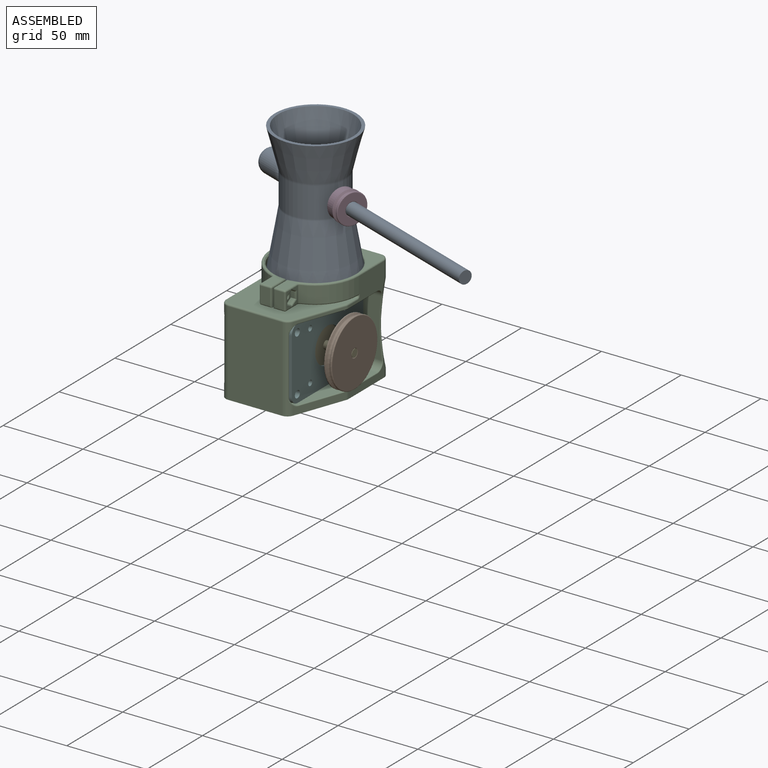
[diagram: assembled view]
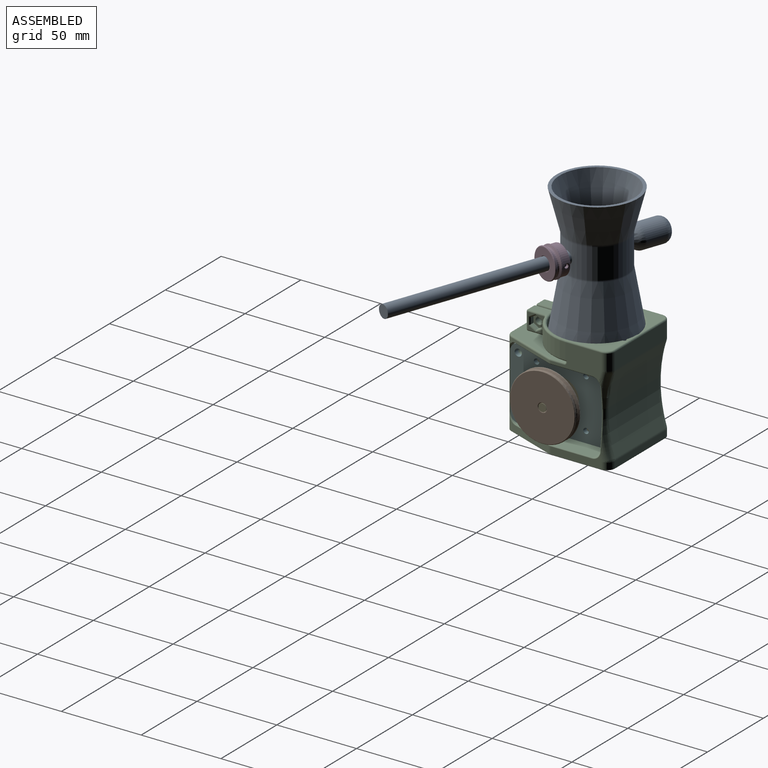
[diagram: assembled view, second angle]
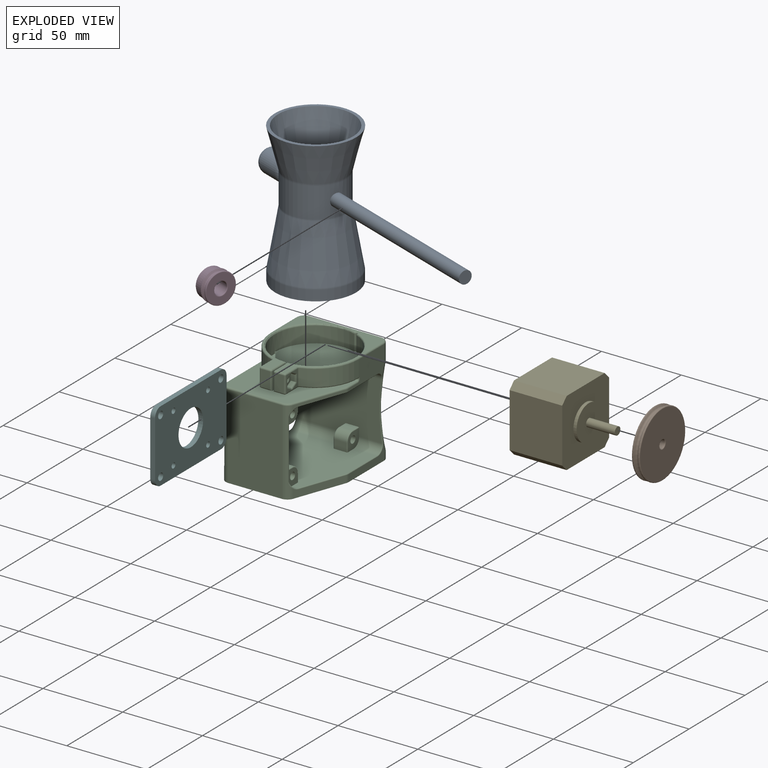
[diagram: exploded view]
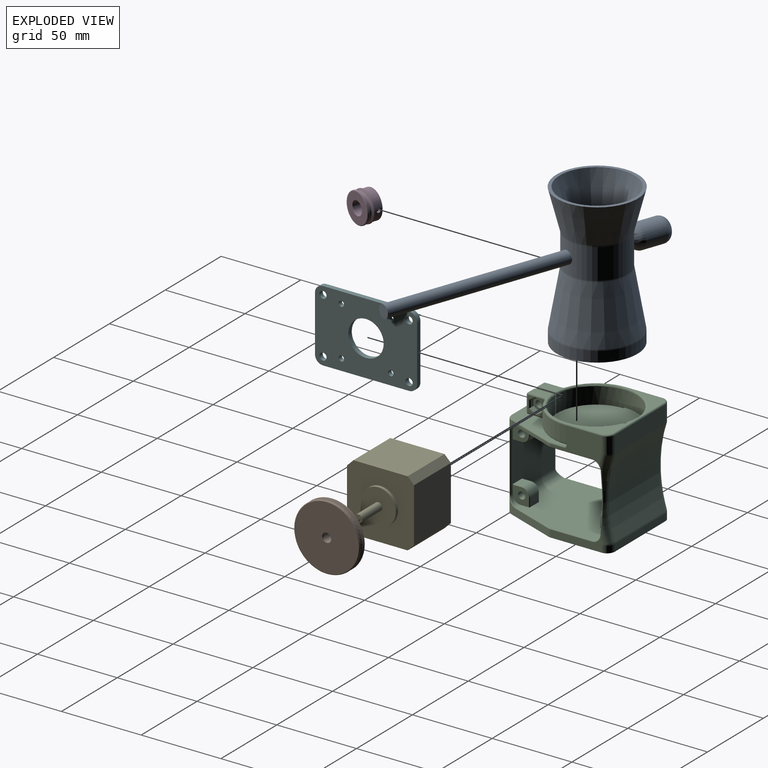
[diagram: exploded view, second angle]
ASSEMBLY  parts=6 mates=5
PART A: 25 faces, bbox 54.9x178x88 mm
  f0: cone r=25.35mm half-angle=10deg, axis (0,0,-1), area 4971.4mm2, adj f22,f24
  f1: cylinder r=25.35mm len=50.7mm, axis (0,0,1), area 1045.3mm2, adj f2,f22
  f2: plane 50.7x50.7mm, normal (0,0,-1), area 698.6mm2, adj f1,f3
  f3: cylinder r=20.5mm len=41mm, axis (0,0,1), area 772.8mm2, adj f2,f4
  f4: plane 41x41mm, normal (0,0,-1), area 412.3mm2, adj f3,f5
  f5: cone r=17mm half-angle=5.7deg, axis (0,0,-1), area 3706.3mm2, adj f4,f6
  f6: plane 26.2x26.2mm, normal (0,0,-1), area 539.1mm2, adj f5
  f7: plane 26.2x26.2mm, normal (0,0,1), area 539.1mm2, adj f8
  f8: cone r=23.5mm half-angle=14.6deg, axis (0,0,1), area 4647.4mm2, adj f7,f9,f19
  f9: plane 51x51mm, normal (0,0,1), area 307.9mm2, adj f8,f10
  f10: cone r=19mm half-angle=14.6deg, axis (0,0,1), area 3534.6mm2, adj f9,f23
  f11: cylinder r=19mm len=38mm, axis (0,0,1), area 2158.3mm2, adj f13,f17,f18,f23,f24
  f12: plane 8x8mm, normal (0,-1,0), area 50.3mm2, adj f13
  f13: cylinder r=4mm len=115.43mm, axis (0,-1,0), area 2895.6mm2, adj f11,f12
  f14: plane 5x5mm, normal (0,1,0), area 19.6mm2, adj f21
  f15: cylinder r=7.5mm len=15mm, axis (0,-1,0), area 632.6mm2, adj f20,f21
  f16: cone r=4mm half-angle=35deg, axis (0,1,0), area 150.7mm2, adj f17,f18,f20
  f17: cylinder r=4mm len=8mm, axis (0,-1,0), area 2.7mm2, adj f11,f16
  f18: cylinder r=4mm len=8mm, axis (0,-1,0), area 2.7mm2, adj f11,f16
  f19: cylinder r=4mm len=30.88mm, axis (0,-1,0), area 709.6mm2, adj f8
  f20: torus R=2.5mm, axis (0,1,0), area 138mm2, adj f15,f16
  f21: torus R=2.5mm, axis (0,1,0), area 280.4mm2, adj f14,f15
  f22: torus R=20.35mm, axis (0,0,-1), area 138.9mm2, adj f0,f1
  f23: torus R=24mm, axis (0,0,1), area 152.3mm2, adj f10,f11
  f24: torus R=24mm, axis (0,0,1), area 104.4mm2, adj f0,f11
PART B: 27 faces, bbox 44.6x10x44.6 mm
  f0: cylinder r=1.1mm len=2.8mm, axis (-1,0,0), area 18.8mm2, adj f13,f21
  f1: cylinder r=2.5mm len=9mm, axis (0,-1,0), area 137.5mm2, adj f11,f23,f24
  f2: cylinder r=9mm len=18mm, axis (0,-1,0), area 245.9mm2, adj f8,f21,f25
  f3: torus R=20.1mm, axis (0,-1,0), area 277.8mm2, adj f4,f10
  f4: cone r=19.55mm half-angle=60deg, axis (0,-1,0), area 152.9mm2, adj f3,f5
  f5: cylinder r=20.6mm len=41.2mm, axis (0,-1,0), area 57.1mm2, adj f4,f22
  f6: plane 40.2x40.2mm, normal (0,-1,0), area 1241mm2, adj f22,f23
  f7: plane 17x17mm, normal (0,1,0), area 184.9mm2, adj f17,f18,f19,f20,f24,f25
  f8: plane 40.2x40.2mm, normal (0,1,0), area 1014.8mm2, adj f2,f26
  f9: cylinder r=20.6mm len=41.2mm, axis (0,-1,0), area 57.1mm2, adj f10,f26
  f10: cone r=20.6mm half-angle=60deg, axis (0,1,0), area 152.9mm2, adj f3,f9
  f11: cylinder r=1.1mm len=2.2mm, axis (-1,0,0), area 11.2mm2, adj f1,f15
  f12: plane 4.5x1.7mm, normal (0,0,-1), area 7.7mm2, adj f13,f15,f16,f17
  f13: plane 4.5x4.1mm, normal (-1,0,0), area 14.6mm2, adj f0,f12,f14,f16,f18
  f14: plane 4.5x1.7mm, normal (0,0,1), area 7.7mm2, adj f13,f15,f16,f20
  f15: plane 4.5x4.1mm, normal (1,0,0), area 14.6mm2, adj f11,f12,f14,f16,f19
  f16: plane 4.1x1.7mm, normal (0,1,0), area 7mm2, adj f12,f13,f14,f15
  f17: cylinder r=0.5mm len=2.7mm, axis (1,0,0), area 1.6mm2, adj f7,f12,f18,f19
  f18: cylinder r=0.5mm len=5.1mm, axis (0,0,-1), area 3.5mm2, adj f7,f13,f17,f20
  f19: cylinder r=0.5mm len=5.1mm, axis (0,0,1), area 3.5mm2, adj f7,f15,f17,f20
  f20: cylinder r=0.5mm len=2.7mm, axis (-1,0,0), area 1.6mm2, adj f7,f14,f18,f19
  f21: bspline ~3.39x3.21mm, area 6.8mm2, adj f0,f2
  f22: torus R=20.1mm, axis (0,1,0), area 100.8mm2, adj f5,f6
  f23: torus R=3mm, axis (0,1,0), area 13.2mm2, adj f1,f6
  f24: torus R=3mm, axis (0,-1,0), area 13.2mm2, adj f1,f7
  f25: torus R=8.5mm, axis (0,-1,0), area 43.5mm2, adj f2,f7
  f26: torus R=20.1mm, axis (0,-1,0), area 100.8mm2, adj f8,f9
PART C: 261 faces, bbox 75.1x59.5x67.2 mm
  f0: plane 5x5mm, normal (0,1,0), area 5.4mm2, adj f165,f174,f184
  f1: plane 5x5mm, normal (0,1,0), area 5.4mm2, adj f164,f165,f184
  f2: plane 10x4.84mm, normal (0,-1,0), area 17mm2, adj f126,f134,f135,f140,f144,f145
  f3: plane 31.32x11.4mm, normal (-0.34,-0.94,0), area 51.5mm2, adj f121,f123,f162,f225,f227
  f4: plane 63x7.67mm, normal (0,1,0), area 289.6mm2, adj f37,f112,f113,f122,f240,f242,f244
  f5: plane 31.68x7.67mm, normal (0,-1,0), area 148.4mm2, adj f37,f116,f119,f120,f230,f232
  f6: plane 31.68x16.52mm, normal (0,-1,0), area 339mm2, adj f13,f110,f116,f121,f142,f155,f160,f161
  f7: plane 45x10.21mm, normal (1,0,0), area 459.6mm2, adj f108,f110,f111,f149
  f8: plane 63x16.52mm, normal (0,1,0), area 386.2mm2, adj f12,f108,f112,f122,f157,f179,f181,f182
  f9: cylinder r=2.25mm len=4.5mm, axis (0,1,0), area 63.6mm2, adj f16,f100
  f10: cylinder r=2.25mm len=4.5mm, axis (0,1,0), area 46.7mm2, adj f17,f99
  f11: plane 50.7x49.7mm, normal (0,0,1), area 1942.4mm2, adj f21,f38,f39,f94,f96,f97
  f12: cylinder r=27.5mm len=26.03mm, axis (0,0,1), area 341.6mm2, adj f8,f163,f173,f180
  f13: cylinder r=27.5mm len=26.03mm, axis (0,0,1), area 341.6mm2, adj f6,f136,f145,f151
  f14: plane 10x4.56mm, normal (0,-1,0), area 14.3mm2, adj f127,f132,f133,f135,f139,f144
  f15: plane 10x5.7mm, normal (-1,0,0), area 57mm2, adj f124,f128,f131,f132
  f16: plane 11.9x11mm, normal (0,1,0), area 115mm2, adj f9,f39,f93,f128,f130
  f17: plane 11.9x11mm, normal (0,-1,0), area 115mm2, adj f10,f21,f95,f150,f159
  f18: plane 10x5.7mm, normal (-1,0,0), area 57mm2, adj f153,f159,f165,f166
  f19: plane 10x5.27mm, normal (0,1,0), area 13.5mm2, adj f164,f173,f174,f184
  f20: plane 63.8x53mm, normal (0,0,1), area 447.4mm2, adj f124,f130,f135,f136,f137,f141,f142,f143
  f21: cylinder r=25.35mm len=50.7mm, axis (0,0,1), area 909.2mm2, adj f11,f17,f38,f95,f96,f147
  f22: cylinder r=2.25mm len=5.8mm, axis (0,-1,0), area 82mm2, adj f26,f85
  f23: cylinder r=2.25mm len=5.8mm, axis (0,-1,0), area 82mm2, adj f27,f78
  f24: cylinder r=2.25mm len=5.8mm, axis (0,-1,0), area 82mm2, adj f28,f71
  f25: cylinder r=2.25mm len=5.8mm, axis (0,-1,0), area 82mm2, adj f29,f64
  f26: plane 10x10mm, normal (0,-1,0), area 74.4mm2, adj f22,f44,f45,f46,f249,f250,f251
  f27: plane 10x10mm, normal (0,-1,0), area 74.4mm2, adj f23,f40,f46,f47,f252,f253,f254
  f28: plane 10x10mm, normal (0,-1,0), area 74.4mm2, adj f24,f40,f41,f42,f255,f256,f257
  f29: plane 10x10mm, normal (0,-1,0), area 74.4mm2, adj f25,f42,f43,f44,f258,f259,f260
  f30: plane 9.5x9.5mm, normal (0,1,0), area 18mm2, adj f42,f44,f50,f212,f213,f214,f216,f219
  f31: plane 9.5x9.5mm, normal (0,1,0), area 18mm2, adj f40,f42,f51,f203,f204,f205,f208,f210
  f32: plane 9.5x9.5mm, normal (0,1,0), area 18mm2, adj f40,f46,f48,f194,f195,f196,f199,f200
  f33: plane 9.5x9.5mm, normal (0,1,0), area 18mm2, adj f44,f46,f49,f185,f186,f187,f190,f192
  f34: plane 31.32x11.4mm, normal (-0.34,-0.94,0), area 151.5mm2, adj f37,f120,f123,f224,f226
  f35: plane 45x4.21mm, normal (1,0,0), area 189.6mm2, adj f37,f113,f117,f119
  f36: plane 53x33.6mm, normal (-1,0,0), area 1780.9mm2, adj f37,f122,f123,f172
  f37: plane 73x55mm, normal (0,0,-1), area 3768.1mm2, adj f4,f5,f34,f35,f36,f113,f119,f120
  f38: cylinder r=1mm len=10mm, axis (0,0,1), area 31.8mm2, adj f11,f21,f39,f143
  f39: cylinder r=25.35mm len=48.81mm, axis (0,0,1), area 732.2mm2, adj f11,f16,f38,f93,f97,f137
  f40: plane 55x54mm, normal (0,0,1), area 2723.4mm2, adj f27,f28,f31,f32,f41,f47,f48,f51
  f41: cylinder r=5mm len=14.4mm, axis (0,-1,0), area 113mm2, adj f28,f40,f42,f232,f234
  f42: plane 53.74x36.01mm, normal (-1,0,0), area 1767.6mm2, adj f28,f29,f30,f31,f41,f43,f50,f51
  f43: cylinder r=5mm len=14.4mm, axis (0,-1,0), area 112.3mm2, adj f29,f42,f44,f233,f235
  f44: plane 55x54mm, normal (0,0,-1), area 2723.4mm2, adj f26,f29,f30,f33,f43,f45,f49,f50
  f45: cylinder r=5mm len=5mm, axis (0,-1,0), area 20.2mm2, adj f26,f44,f46,f223,f225
  f46: plane 39.26x36mm, normal (1,0,0), area 1314.8mm2, adj f26,f27,f32,f33,f45,f47,f48,f49
  f47: cylinder r=5mm len=5mm, axis (0,-1,0), area 20.2mm2, adj f27,f40,f46,f222,f224
  f48: cylinder r=5mm len=30.6mm, axis (0,1,0), area 235.5mm2, adj f32,f40,f46,f244,f246
  f49: cylinder r=5mm len=30.6mm, axis (0,1,0), area 235.5mm2, adj f33,f44,f46,f245,f247
  f50: cylinder r=5mm len=30.6mm, axis (0,1,0), area 239.6mm2, adj f30,f42,f44,f239,f241
  f51: cylinder r=5mm len=30.6mm, axis (0,1,0), area 240.2mm2, adj f31,f40,f42,f238,f240
  f52: plane 7.5x5.5mm, normal (1,0,0), area 41.2mm2, adj f44,f53,f187,f251
  f53: cylinder r=5mm len=7.5mm, axis (0,-1,0), area 58.9mm2, adj f52,f54,f191,f250
  f54: plane 7.5x5.5mm, normal (0,0,-1), area 41.3mm2, adj f46,f53,f193,f249
  f55: plane 7.5x5.5mm, normal (0,0,1), area 41.3mm2, adj f46,f56,f202,f252
  f56: cylinder r=5mm len=7.5mm, axis (0,-1,0), area 58.9mm2, adj f55,f57,f201,f253
  f57: plane 7.5x5.5mm, normal (1,0,0), area 41.2mm2, adj f40,f56,f199,f254
  f58: plane 7.5x5.5mm, normal (-1,0,0), area 41.2mm2, adj f40,f59,f205,f257
  f59: cylinder r=5mm len=7.5mm, axis (0,-1,0), area 58.9mm2, adj f58,f60,f209,f256
  f60: plane 7.5x5.5mm, normal (0,0,1), area 41.3mm2, adj f42,f59,f211,f255
  f61: plane 7.5x5.5mm, normal (-1,0,0), area 41.2mm2, adj f44,f63,f220,f260
  f62: plane 7.5x5.5mm, normal (0,0,-1), area 41.3mm2, adj f42,f63,f214,f258
  f63: cylinder r=5mm len=7.5mm, axis (0,-1,0), area 58.9mm2, adj f61,f62,f217,f259
  f64: plane 8.2x7.1mm, normal (0,1,0), area 27.8mm2, adj f25,f65,f66,f67,f68,f69,f70
  f65: plane 3.55x2.2mm, normal (-0.5,0,0.87), area 9mm2, adj f64,f66,f70,f212
  f66: plane 3.55x2.2mm, normal (0.5,0,0.87), area 9mm2, adj f64,f65,f67,f215
  f67: plane 4.1x2.2mm, normal (1,0,0), area 9mm2, adj f64,f66,f68,f218
  f68: plane 3.55x2.2mm, normal (0.5,0,-0.87), area 9mm2, adj f64,f67,f69,f219
  f69: plane 3.55x2.2mm, normal (-0.5,0,-0.87), area 9mm2, adj f64,f68,f70,f216
  f70: plane 4.1x2.2mm, normal (-1,0,0), area 9mm2, adj f64,f65,f69,f213
  f71: plane 8.2x7.1mm, normal (0,1,0), area 27.8mm2, adj f24,f72,f73,f74,f75,f76,f77
  f72: plane 4.1x2.2mm, normal (1,0,0), area 9mm2, adj f71,f73,f77,f206
  f73: plane 3.55x2.2mm, normal (0.5,0,-0.87), area 9mm2, adj f71,f72,f74,f207
  f74: plane 3.55x2.2mm, normal (-0.5,0,-0.87), area 9mm2, adj f71,f73,f75,f210
  f75: plane 4.1x2.2mm, normal (-1,0,0), area 9mm2, adj f71,f74,f76,f208
  f76: plane 3.55x2.2mm, normal (-0.5,0,0.87), area 9mm2, adj f71,f75,f77,f204
  f77: plane 3.55x2.2mm, normal (0.5,0,0.87), area 9mm2, adj f71,f72,f76,f203
  f78: plane 8.2x7.1mm, normal (0,1,0), area 27.8mm2, adj f23,f79,f80,f81,f82,f83,f84
  f79: plane 3.55x2.2mm, normal (0.5,0,-0.87), area 9mm2, adj f78,f80,f84,f200
  f80: plane 3.55x2.2mm, normal (-0.5,0,-0.87), area 9mm2, adj f78,f79,f81,f197
  f81: plane 4.1x2.2mm, normal (-1,0,0), area 9mm2, adj f78,f80,f82,f198
  f82: plane 3.55x2.2mm, normal (-0.5,0,0.87), area 9mm2, adj f78,f81,f83,f195
  f83: plane 3.55x2.2mm, normal (0.5,0,0.87), area 9mm2, adj f78,f82,f84,f194
  f84: plane 4.1x2.2mm, normal (1,0,0), area 9mm2, adj f78,f79,f83,f196
  f85: plane 8.2x7.1mm, normal (0,1,0), area 27.8mm2, adj f22,f86,f87,f88,f89,f90,f91
  f86: plane 4.1x2.2mm, normal (-1,0,0), area 9mm2, adj f85,f87,f91,f188
  f87: plane 3.55x2.2mm, normal (-0.5,0,0.87), area 9mm2, adj f85,f86,f88,f189
  f88: plane 3.55x2.2mm, normal (0.5,0,0.87), area 9mm2, adj f85,f87,f89,f192
  f89: plane 4.1x2.2mm, normal (1,0,0), area 9mm2, adj f85,f88,f90,f190
  f90: plane 3.55x2.2mm, normal (0.5,0,-0.87), area 9mm2, adj f85,f89,f91,f186
  f91: plane 3.55x2.2mm, normal (-0.5,0,-0.87), area 9mm2, adj f85,f86,f90,f185
  f92: plane 53x43.44mm, normal (0,0,1), area 1120.9mm2, adj f156,f161,f162,f168,f171,f172,f175,f176
  f93: plane 37.25x26mm, normal (0,0,-1), area 121mm2, adj f16,f39,f131,f144,f148,f151,f171
  f94: cylinder r=24.35mm len=48.7mm, axis (0,0,1), area 76.5mm2, adj f11,f96,f97,f175
  f95: plane 37.25x26mm, normal (0,0,-1), area 121mm2, adj f17,f21,f166,f174,f177,f178,f180
  f96: plane 1x1mm, normal (-1,0,0), area 1mm2, adj f11,f21,f94,f178
  f97: plane 1x1mm, normal (-1,0,0), area 1mm2, adj f11,f39,f94,f171
  f98: cylinder r=4mm len=8mm, axis (0,1,0), area 85.5mm2, adj f99,f184
  f99: plane 8x8mm, normal (0,1,0), area 34.4mm2, adj f10,f98
  f100: plane 8.2x7.1mm, normal (0,-1,0), area 27.8mm2, adj f9,f101,f102,f103,f104,f105,f106
  f101: plane 3.55x2.2mm, normal (0.5,0,0.87), area 9mm2, adj f100,f102,f106,f139
  f102: plane 3.55x2.2mm, normal (-0.5,0,0.87), area 9mm2, adj f100,f101,f103,f140
  f103: plane 4.1x2.2mm, normal (-1,0,0), area 9mm2, adj f100,f102,f104,f134
  f104: plane 3.55x2.2mm, normal (-0.5,0,-0.87), area 9mm2, adj f100,f103,f105,f126
  f105: plane 3.55x2.2mm, normal (0.5,0,-0.87), area 9mm2, adj f100,f104,f106,f127
  f106: plane 4.1x2.2mm, normal (1,0,0), area 9mm2, adj f100,f101,f105,f133
  f107: cylinder r=80.12mm len=48.55mm, axis (0,1,0), area 2219.4mm2, adj f111,f112,f116,f117
  f108: cylinder r=5mm len=10.21mm, axis (0,0,-1), area 80.2mm2, adj f7,f8,f109,f152
  f109: sphere r=5mm, area 7.7mm2, adj f108,f111,f112
  f110: cylinder r=5mm len=10.21mm, axis (0,0,-1), area 80.2mm2, adj f6,f7,f114,f146
  f111: cylinder r=5mm len=45mm, axis (0,1,0), area 69.2mm2, adj f7,f107,f109,f114
  f112: torus R=85.12mm, axis (0,-1,0), area 265mm2, adj f4,f8,f107,f109,f115,f237,f238,f239
  f113: cylinder r=5mm len=5mm, axis (0,0,-1), area 33.1mm2, adj f4,f35,f37,f115
  f114: sphere r=5mm, area 7.7mm2, adj f110,f111,f116
  f115: sphere r=5mm, area 7.7mm2, adj f112,f113,f117
  f116: torus R=85.12mm, axis (0,1,0), area 265mm2, adj f5,f6,f107,f114,f118,f234,f235,f236
  f117: cylinder r=5mm len=45mm, axis (0,1,0), area 69.2mm2, adj f35,f107,f115,f118
  f118: sphere r=5mm, area 7.7mm2, adj f116,f117,f119
  f119: cylinder r=5mm len=5mm, axis (0,0,-1), area 33.1mm2, adj f5,f35,f37,f118
  f120: cylinder r=5mm len=4.5mm, axis (0,0,1), area 7.9mm2, adj f5,f34,f37,f228
  f121: cylinder r=5mm len=1.71mm, axis (0,0,1), area 2.6mm2, adj f3,f6,f156,f229
  f122: cylinder r=5mm len=53mm, axis (0,0,-1), area 224.1mm2, adj f4,f8,f36,f37,f176,f246,f247,f248
  f123: cylinder r=5mm len=53mm, axis (0,0,1), area 210.9mm2, adj f3,f34,f36,f37,f168,f221,f222,f223
  f124: cylinder r=1mm len=5.7mm, axis (0,-1,0), area 9mm2, adj f15,f20,f125,f129
  f125: sphere r=1mm, area 1.6mm2, adj f124,f128,f130
  f126: cylinder r=1mm len=4.99mm, axis (-0.87,0,0.5), area 7.3mm2, adj f2,f104,f127,f134,f135
  f127: cylinder r=1mm len=4.99mm, axis (-0.87,0,-0.5), area 7.3mm2, adj f14,f105,f126,f133,f135
  f128: cylinder r=1mm len=11mm, axis (0,0,1), area 16.7mm2, adj f15,f16,f125,f131
  f129: sphere r=1mm, area 1.6mm2, adj f124,f132,f135
  f130: cylinder r=1mm len=11.9mm, axis (-1,0,0), area 18.1mm2, adj f16,f20,f125,f137
  f131: cylinder r=1mm len=6.7mm, axis (0,-1,0), area 10mm2, adj f15,f93,f128,f138
  f132: cylinder r=1mm len=10mm, axis (0,0,-1), area 15.7mm2, adj f14,f15,f129,f138
  f133: cylinder r=1mm len=5.25mm, axis (0,0,-1), area 7.3mm2, adj f14,f106,f127,f139
  f134: cylinder r=1mm len=5.25mm, axis (0,0,1), area 7.3mm2, adj f2,f103,f126,f140
  f135: cylinder r=1mm len=10.27mm, axis (1,0,0), area 16.1mm2, adj f2,f14,f20,f126,f127,f129,f141
  f136: torus R=26.5mm, axis (0,0,1), area 52.9mm2, adj f13,f20,f141,f142
  f137: torus R=26.35mm, axis (0,0,1), area 109.3mm2, adj f20,f39,f130,f143
  f138: sphere r=1mm, area 1.6mm2, adj f131,f132,f144
  f139: cylinder r=1mm len=4.99mm, axis (0.87,0,-0.5), area 7.3mm2, adj f14,f101,f133,f140,f144
  f140: cylinder r=1mm len=4.99mm, axis (0.87,0,0.5), area 7.3mm2, adj f2,f102,f134,f139,f144
  f141: torus R=2mm, axis (0,0,1), area 2.7mm2, adj f20,f135,f136,f145
  f142: cylinder r=1mm len=22.56mm, axis (-1,0,0), area 35.4mm2, adj f6,f20,f136,f146
  f143: torus R=2mm, axis (0,0,1), area 5.6mm2, adj f20,f38,f137,f147
  f144: cylinder r=1mm len=10.27mm, axis (1,0,0), area 16.1mm2, adj f2,f14,f93,f138,f139,f140,f148
  f145: cylinder r=1mm len=10mm, axis (0,0,1), area 12.4mm2, adj f2,f13,f141,f148
  f146: torus R=4mm, axis (0,0,1), area 11.4mm2, adj f20,f110,f142,f149
  f147: torus R=26.35mm, axis (0,0,1), area 137.5mm2, adj f20,f21,f143,f150
  f148: torus R=2mm, axis (0,0,-1), area 2.7mm2, adj f93,f144,f145,f151
  f149: cylinder r=1mm len=45mm, axis (0,-1,0), area 70.7mm2, adj f7,f20,f146,f152
  f150: cylinder r=1mm len=11.9mm, axis (1,0,0), area 18.1mm2, adj f17,f20,f147,f154
  f151: torus R=26.5mm, axis (0,0,-1), area 52.9mm2, adj f13,f93,f148,f155
  f152: torus R=4mm, axis (0,0,1), area 11.4mm2, adj f20,f108,f149,f157
  f153: cylinder r=1mm len=5.7mm, axis (0,-1,0), area 9mm2, adj f18,f20,f154,f158
  f154: sphere r=1mm, area 1.6mm2, adj f150,f153,f159
  f155: cylinder r=1mm len=1mm, axis (-1,0,0), area 0.6mm2, adj f6,f151,f160
  f156: torus R=4mm, axis (0,0,1), area 2.5mm2, adj f92,f121,f161,f162
  f157: cylinder r=1mm len=22.56mm, axis (1,0,0), area 35.4mm2, adj f8,f20,f152,f163
  f158: sphere r=1mm, area 1.6mm2, adj f153,f164,f165
  f159: cylinder r=1mm len=11mm, axis (0,0,-1), area 16.7mm2, adj f17,f18,f154,f166
  f160: cylinder r=1mm len=1mm, axis (0,0,1), area 0.6mm2, adj f6,f155,f167
  f161: cylinder r=1mm len=8.13mm, axis (1,0,0), area 12.8mm2, adj f6,f92,f156,f167
  f162: cylinder r=1mm len=31.66mm, axis (0.94,-0.34,0), area 52.3mm2, adj f3,f92,f156,f168
  f163: torus R=26.5mm, axis (0,0,1), area 52.9mm2, adj f12,f20,f157,f169
  f164: cylinder r=1mm len=10.27mm, axis (-1,0,0), area 16.1mm2, adj f1,f19,f20,f158,f169
  f165: cylinder r=1mm len=10mm, axis (0,0,-1), area 15.7mm2, adj f0,f1,f18,f158,f170
  f166: cylinder r=1mm len=6.7mm, axis (0,-1,0), area 10mm2, adj f18,f95,f159,f170
  f167: torus R=2mm, axis (0,1,0), area 3.4mm2, adj f6,f160,f161,f171
  f168: torus R=4mm, axis (0,0,1), area 8.9mm2, adj f92,f123,f162,f172
  f169: torus R=2mm, axis (0,0,1), area 2.7mm2, adj f20,f163,f164,f173
  f170: sphere r=1mm, area 1.6mm2, adj f165,f166,f174
  f171: cylinder r=1mm len=2.15mm, axis (0,1,0), area 2.8mm2, adj f92,f93,f97,f167,f175
  f172: cylinder r=1mm len=33.6mm, axis (0,-1,0), area 52.8mm2, adj f36,f92,f168,f176
  f173: cylinder r=1mm len=10mm, axis (0,0,1), area 12.4mm2, adj f12,f19,f169,f177
  f174: cylinder r=1mm len=10.27mm, axis (-1,0,0), area 16.1mm2, adj f0,f19,f95,f170,f177
  f175: torus R=25.35mm, axis (0,0,1), area 120.8mm2, adj f92,f94,f171,f178
  f176: torus R=4mm, axis (0,0,1), area 11.4mm2, adj f92,f122,f172,f179
  f177: torus R=2mm, axis (0,0,-1), area 2.7mm2, adj f95,f173,f174,f180
  f178: cylinder r=1mm len=2.15mm, axis (0,1,0), area 2.8mm2, adj f92,f95,f96,f175,f181
  f179: cylinder r=1mm len=39.44mm, axis (-1,0,0), area 62mm2, adj f8,f92,f176,f181
  f180: torus R=26.5mm, axis (0,0,-1), area 52.9mm2, adj f12,f95,f177,f182
  f181: torus R=2mm, axis (0,-1,0), area 3.4mm2, adj f8,f178,f179,f183
  f182: cylinder r=1mm len=1mm, axis (1,0,0), area 0.6mm2, adj f8,f180,f183
  f183: cylinder r=1mm len=1mm, axis (0,0,-1), area 0.6mm2, adj f8,f181,f182
  f184: torus R=5mm, axis (0,-1,0), area 43.1mm2, adj f0,f1,f19,f98
  f185: cylinder r=1mm len=4.91mm, axis (0.87,0,-0.5), area 7.2mm2, adj f33,f91,f186,f187,f188
  f186: cylinder r=1mm len=5.05mm, axis (0.87,0,0.5), area 7.3mm2, adj f33,f90,f185,f190
  f187: cylinder r=1mm len=5.5mm, axis (0,0,1), area 7.9mm2, adj f33,f44,f52,f185,f188,f191
  f188: cylinder r=1mm len=4.76mm, axis (0,0,-1), area 5.4mm2, adj f86,f185,f187,f189,f191
  f189: cylinder r=1mm len=4.33mm, axis (-0.87,0,-0.5), area 5.2mm2, adj f87,f188,f191,f192
  f190: cylinder r=1mm len=5.25mm, axis (0,0,1), area 7.3mm2, adj f33,f89,f186,f192
  f191: torus R=4mm, axis (0,-1,0), area 8.7mm2, adj f53,f187,f188,f189,f193
  f192: cylinder r=1mm len=4.76mm, axis (-0.87,0,0.5), area 6.5mm2, adj f33,f88,f189,f190,f193
  f193: cylinder r=1mm len=5.5mm, axis (1,0,0), area 8mm2, adj f33,f46,f54,f191,f192
  f194: cylinder r=1mm len=5.05mm, axis (-0.87,0,0.5), area 7.3mm2, adj f32,f83,f195,f196
  f195: cylinder r=1mm len=4.91mm, axis (-0.87,0,-0.5), area 7.2mm2, adj f32,f82,f194,f198,f199
  f196: cylinder r=1mm len=5.25mm, axis (0,0,1), area 7.3mm2, adj f32,f84,f194,f200
  f197: cylinder r=1mm len=4.33mm, axis (0.87,0,-0.5), area 5.2mm2, adj f80,f198,f200,f201
  f198: cylinder r=1mm len=4.76mm, axis (0,0,-1), area 5.4mm2, adj f81,f195,f197,f199,f201
  f199: cylinder r=1mm len=5.5mm, axis (0,0,1), area 7.9mm2, adj f32,f40,f57,f195,f198,f201
  f200: cylinder r=1mm len=4.76mm, axis (0.87,0,0.5), area 6.5mm2, adj f32,f79,f196,f197,f202
  f201: torus R=4mm, axis (0,-1,0), area 8.7mm2, adj f56,f197,f198,f199,f202
  f202: cylinder r=1mm len=5.5mm, axis (-1,0,0), area 8mm2, adj f32,f46,f55,f200,f201
  f203: cylinder r=1mm len=4.91mm, axis (-0.87,0,0.5), area 7.2mm2, adj f31,f77,f204,f205,f206
  f204: cylinder r=1mm len=5.05mm, axis (-0.87,0,-0.5), area 7.3mm2, adj f31,f76,f203,f208
  f205: cylinder r=1mm len=5.5mm, axis (0,0,-1), area 7.9mm2, adj f31,f40,f58,f203,f206,f209
  f206: cylinder r=1mm len=4.76mm, axis (0,0,1), area 5.4mm2, adj f72,f203,f205,f207,f209
  f207: cylinder r=1mm len=4.33mm, axis (0.87,0,0.5), area 5.2mm2, adj f73,f206,f209,f210
  f208: cylinder r=1mm len=5.25mm, axis (0,0,-1), area 7.3mm2, adj f31,f75,f204,f210
  f209: torus R=4mm, axis (0,-1,0), area 8.7mm2, adj f59,f205,f206,f207,f211
  f210: cylinder r=1mm len=4.76mm, axis (0.87,0,-0.5), area 6.5mm2, adj f31,f74,f207,f208,f211
  f211: cylinder r=1mm len=5.5mm, axis (-1,0,0), area 8mm2, adj f31,f42,f60,f209,f210
  f212: cylinder r=1mm len=4.76mm, axis (-0.87,0,-0.5), area 6.5mm2, adj f30,f65,f213,f214,f215
  f213: cylinder r=1mm len=5.25mm, axis (0,0,-1), area 7.3mm2, adj f30,f70,f212,f216
  f214: cylinder r=1mm len=5.5mm, axis (1,0,0), area 8mm2, adj f30,f42,f62,f212,f217
  f215: cylinder r=1mm len=4.33mm, axis (-0.87,0,0.5), area 5.2mm2, adj f66,f212,f217,f218
  f216: cylinder r=1mm len=5.05mm, axis (0.87,0,-0.5), area 7.3mm2, adj f30,f69,f213,f219
  f217: torus R=4mm, axis (0,-1,0), area 8.7mm2, adj f63,f214,f215,f218,f220
  f218: cylinder r=1mm len=4.76mm, axis (0,0,1), area 5.4mm2, adj f67,f215,f217,f219,f220
  f219: cylinder r=1mm len=4.91mm, axis (0.87,0,0.5), area 7.2mm2, adj f30,f68,f216,f218,f220
  f220: cylinder r=1mm len=5.5mm, axis (0,0,-1), area 7.9mm2, adj f30,f44,f61,f217,f218,f219
  f221: cylinder r=0.5mm len=36mm, axis (0,0,1), area 44.3mm2, adj f46,f123,f222,f223
  f222: bspline ~5.33x2.83mm, area 5.2mm2, adj f47,f123,f221,f224
  f223: bspline ~4.99x3.35mm, area 5.2mm2, adj f45,f123,f221,f225
  f224: bspline ~4.45x2.23mm, area 3.2mm2, adj f34,f47,f222,f226
  f225: bspline ~4.45x2.23mm, area 3.2mm2, adj f3,f45,f223,f227
  f226: cylinder r=0.5mm len=27.95mm, axis (-0.94,0.34,0), area 23.2mm2, adj f34,f40,f224,f228
  f227: cylinder r=0.5mm len=27.95mm, axis (0.94,-0.34,0), area 23.2mm2, adj f3,f44,f225,f229
  f228: torus R=4.5mm, axis (0,0,-1), area 1.3mm2, adj f40,f120,f226,f230
  f229: torus R=4.5mm, axis (0,0,1), area 1.3mm2, adj f44,f121,f227,f231
  f230: cylinder r=0.5mm len=25.68mm, axis (1,0,0), area 20.2mm2, adj f5,f40,f228,f232
  f231: cylinder r=0.5mm len=25.68mm, axis (-1,0,0), area 20.2mm2, adj f6,f44,f229,f233
  f232: torus R=5.5mm, axis (0,1,0), area 4.6mm2, adj f5,f41,f230,f234
  f233: torus R=5.5mm, axis (0,1,0), area 3.6mm2, adj f6,f43,f231,f235
  f234: bspline ~4.38x1.55mm, area 2mm2, adj f41,f116,f232,f236
  f235: bspline ~5.27x2.43mm, area 3.3mm2, adj f43,f116,f233,f236
  f236: bspline ~42x2.2mm, area 40.7mm2, adj f42,f116,f234,f235
  f237: bspline ~42x2.21mm, area 40.6mm2, adj f42,f112,f238,f239
  f238: bspline ~4.38x1.55mm, area 2mm2, adj f51,f112,f237,f240
  f239: bspline ~5.27x2.43mm, area 3.3mm2, adj f50,f112,f237,f241
  f240: torus R=5.5mm, axis (0,-1,0), area 4.6mm2, adj f4,f51,f238,f242
  f241: torus R=5.5mm, axis (0,-1,0), area 3.6mm2, adj f8,f50,f239,f243
  f242: cylinder r=0.5mm len=55mm, axis (1,0,0), area 43.2mm2, adj f4,f40,f240,f244
  f243: cylinder r=0.5mm len=55mm, axis (-1,0,0), area 43.2mm2, adj f8,f44,f241,f245
  f244: torus R=5.5mm, axis (0,-1,0), area 1.5mm2, adj f4,f48,f242,f246
  f245: torus R=5.5mm, axis (0,-1,0), area 1.5mm2, adj f8,f49,f243,f247
  f246: bspline ~6.17x4.27mm, area 6.7mm2, adj f48,f122,f244,f248
  f247: bspline ~6.17x4.27mm, area 6.7mm2, adj f49,f122,f245,f248
  f248: cylinder r=0.5mm len=36mm, axis (0,0,-1), area 44.3mm2, adj f46,f122,f246,f247
  f249: cylinder r=0.5mm len=5.5mm, axis (1,0,0), area 4.3mm2, adj f26,f46,f54,f250
  f250: torus R=4.5mm, axis (0,-1,0), area 5.9mm2, adj f26,f53,f249,f251
  f251: cylinder r=0.5mm len=5.5mm, axis (0,0,1), area 4.3mm2, adj f26,f44,f52,f250
  f252: cylinder r=0.5mm len=5.5mm, axis (-1,0,0), area 4.3mm2, adj f27,f46,f55,f253
  f253: torus R=4.5mm, axis (0,-1,0), area 5.9mm2, adj f27,f56,f252,f254
  f254: cylinder r=0.5mm len=5.5mm, axis (0,0,1), area 4.3mm2, adj f27,f40,f57,f253
  f255: cylinder r=0.5mm len=5.5mm, axis (-1,0,0), area 4.3mm2, adj f28,f42,f60,f256
  f256: torus R=4.5mm, axis (0,-1,0), area 5.9mm2, adj f28,f59,f255,f257
  f257: cylinder r=0.5mm len=5.5mm, axis (0,0,-1), area 4.3mm2, adj f28,f40,f58,f256
  f258: cylinder r=0.5mm len=5.5mm, axis (1,0,0), area 4.3mm2, adj f29,f42,f62,f259
  f259: torus R=4.5mm, axis (0,-1,0), area 5.9mm2, adj f29,f63,f258,f260
  f260: cylinder r=0.5mm len=5.5mm, axis (0,0,-1), area 4.3mm2, adj f29,f44,f61,f259
PART D: 27 faces, bbox 20.8x10x20.8 mm
  f0: cylinder r=1.1mm len=2.2mm, axis (-1,0,0), area 8.5mm2, adj f13,f21
  f1: cylinder r=4mm len=9mm, axis (0,-1,0), area 222.4mm2, adj f11,f23,f24
  f2: cylinder r=9mm len=18mm, axis (0,-1,0), area 245.9mm2, adj f8,f21,f25
  f3: torus R=9.1mm, axis (0,-1,0), area 118.6mm2, adj f4,f10
  f4: cone r=8.55mm half-angle=60deg, axis (0,-1,0), area 69.1mm2, adj f3,f5
  f5: cylinder r=9.6mm len=19.2mm, axis (0,-1,0), area 26.6mm2, adj f4,f22
  f6: plane 18.2x18.2mm, normal (0,-1,0), area 196.5mm2, adj f22,f23
  f7: plane 17x17mm, normal (0,1,0), area 149.6mm2, adj f17,f18,f19,f20,f24,f25
  f8: plane 18.2x18.2mm, normal (0,1,0), area 5.7mm2, adj f2,f26
  f9: cylinder r=9.6mm len=19.2mm, axis (0,-1,0), area 26.6mm2, adj f10,f26
  f10: cone r=9.6mm half-angle=60deg, axis (0,1,0), area 69.1mm2, adj f3,f9
  f11: cylinder r=1.1mm len=2.2mm, axis (-1,0,0), area 10.9mm2, adj f1,f15
  f12: plane 4.5x1.7mm, normal (0,0,-1), area 7.7mm2, adj f13,f15,f16,f17
  f13: plane 4.5x4.1mm, normal (-1,0,0), area 14.6mm2, adj f0,f12,f14,f16,f18
  f14: plane 4.5x1.7mm, normal (0,0,1), area 7.7mm2, adj f13,f15,f16,f20
  f15: plane 4.5x4.1mm, normal (1,0,0), area 14.6mm2, adj f11,f12,f14,f16,f19
  f16: plane 4.1x1.7mm, normal (0,1,0), area 7mm2, adj f12,f13,f14,f15
  f17: cylinder r=0.5mm len=2.7mm, axis (1,0,0), area 1.6mm2, adj f7,f12,f18,f19
  f18: cylinder r=0.5mm len=5.1mm, axis (0,0,-1), area 3.5mm2, adj f7,f13,f17,f20
  f19: cylinder r=0.5mm len=5.1mm, axis (0,0,1), area 3.5mm2, adj f7,f15,f17,f20
  f20: cylinder r=0.5mm len=2.7mm, axis (-1,0,0), area 1.6mm2, adj f7,f14,f18,f19
  f21: bspline ~3.39x3.21mm, area 6.8mm2, adj f0,f2
  f22: torus R=9.1mm, axis (0,1,0), area 46.5mm2, adj f5,f6
  f23: torus R=4.5mm, axis (0,1,0), area 20.6mm2, adj f1,f6
  f24: torus R=4.5mm, axis (0,-1,0), area 20.6mm2, adj f1,f7
  f25: torus R=8.5mm, axis (0,-1,0), area 43.5mm2, adj f2,f7
  f26: torus R=9.1mm, axis (0,-1,0), area 46.5mm2, adj f8,f9
PART E: 14 faces, bbox 42x53x42 mm
  f0: plane 34x33mm, normal (0,0,1), area 1122mm2, adj f4,f5,f12,f13
  f1: plane 34x33mm, normal (-1,0,0), area 1122mm2, adj f4,f5,f10,f13
  f2: plane 34x33mm, normal (0,0,-1), area 1122mm2, adj f4,f5,f10,f11
  f3: plane 34x33mm, normal (1,0,0), area 1122mm2, adj f4,f5,f11,f12
  f4: plane 42x42mm, normal (0,1,0), area 1732mm2, adj f0,f1,f2,f3,f10,f11,f12,f13
  f5: plane 42x42mm, normal (0,-1,0), area 1351.9mm2, adj f0,f1,f2,f3,f6,f10,f11,f12
  f6: cylinder r=11mm len=22mm, axis (0,1,0), area 138.2mm2, adj f5,f7
  f7: plane 22x22mm, normal (0,-1,0), area 360.5mm2, adj f6,f8
  f8: cylinder r=2.5mm len=18mm, axis (0,1,0), area 282.7mm2, adj f7,f9
  f9: plane 5x5mm, normal (0,-1,0), area 19.6mm2, adj f8
  f10: plane 33x4mm, normal (-0.71,0,-0.71), area 186.7mm2, adj f1,f2,f4,f5
  f11: plane 33x4mm, normal (0.71,0,-0.71), area 186.7mm2, adj f2,f3,f4,f5
  f12: plane 33x4mm, normal (0.71,0,0.71), area 186.7mm2, adj f0,f3,f4,f5
  f13: plane 33x4mm, normal (-0.71,0,0.71), area 186.7mm2, adj f0,f1,f4,f5
PART F: 19 faces, bbox 64x3x45 mm
  f0: plane 35x3mm, normal (1,0,0), area 105mm2, adj f1,f16,f17,f18
  f1: cylinder r=5mm len=5mm, axis (0,1,0), area 23.6mm2, adj f0,f2,f17,f18
  f2: plane 54x3mm, normal (0,0,1), area 162mm2, adj f1,f3,f17,f18
  f3: cylinder r=5mm len=5mm, axis (0,1,0), area 23.6mm2, adj f2,f4,f17,f18
  f4: plane 35x3mm, normal (-1,0,0), area 105mm2, adj f3,f5,f17,f18
  f5: cylinder r=5mm len=5mm, axis (0,1,0), area 23.6mm2, adj f4,f6,f17,f18
  f6: plane 54x3mm, normal (0,0,-1), area 162mm2, adj f5,f16,f17,f18
  f7: cylinder r=11.05mm len=22.1mm, axis (0,1,0), area 208.3mm2, adj f17,f18
  f8: cylinder r=2.25mm len=4.5mm, axis (0,1,0), area 42.4mm2, adj f17,f18
  f9: cylinder r=2.25mm len=4.5mm, axis (0,1,0), area 42.4mm2, adj f17,f18
  f10: cylinder r=2.25mm len=4.5mm, axis (0,1,0), area 42.4mm2, adj f17,f18
  f11: cylinder r=2.25mm len=4.5mm, axis (0,1,0), area 42.4mm2, adj f17,f18
  f12: cylinder r=1.7mm len=3.4mm, axis (0,1,0), area 32mm2, adj f17,f18
  f13: cylinder r=1.7mm len=3.4mm, axis (0,1,0), area 32mm2, adj f17,f18
  f14: cylinder r=1.7mm len=3.4mm, axis (0,1,0), area 32mm2, adj f17,f18
  f15: cylinder r=1.7mm len=3.4mm, axis (0,1,0), area 32mm2, adj f17,f18
  f16: cylinder r=5mm len=5mm, axis (0,1,0), area 23.6mm2, adj f0,f6,f17,f18
  f17: plane 64x45mm, normal (0,-1,0), area 2375mm2, adj f0,f1,f2,f3,f4,f5,f6,f7
  f18: plane 64x45mm, normal (0,1,0), area 2375mm2, adj f0,f1,f2,f3,f4,f5,f6,f7
PLACE A rot(axis=(0,0,1),70deg) t=(-138.37,48.97,56)mm
PLACE B rot(axis=(0,0,1),90deg) t=(-108.28,37.36,28)mm
PLACE C rot(axis=(0,0,1),90deg) t=(-142.31,37.36,-2.5)mm fixed
PLACE D rot(axis=(0,0,1),70deg) t=(-109.83,38.58,109)mm
PLACE E rot(axis=(0,0,1),90deg) t=(-125.78,37.36,28)mm
PLACE F rot(axis=(0,0,1),90deg) t=(-125.78,37.36,28)mm
MATE fastened A.f0 <-> C.f11  axis (0,0,1) through (-138.37,48.97,56)mm
MATE fastened D.f1 <-> A.f13  axis (-0.94,0.34,0) through (-116.88,41.14,109)mm
MATE fastened B.f1 <-> E.f8  axis (1,0,0) through (-105.78,37.36,28)mm
MATE fastened F.f1 <-> C.f25  axis (-1,0,0) through (-125.78,64.36,45.5)mm
MATE fastened E.f6 <-> F.f7  axis (1,0,0) through (-125.78,37.36,28)mm
